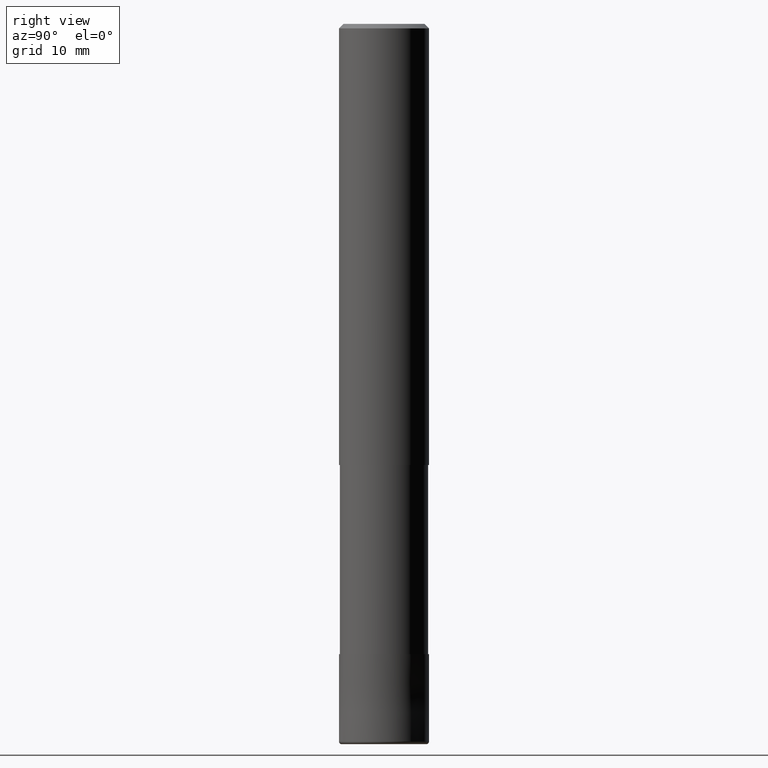
[diagram: clean part render]
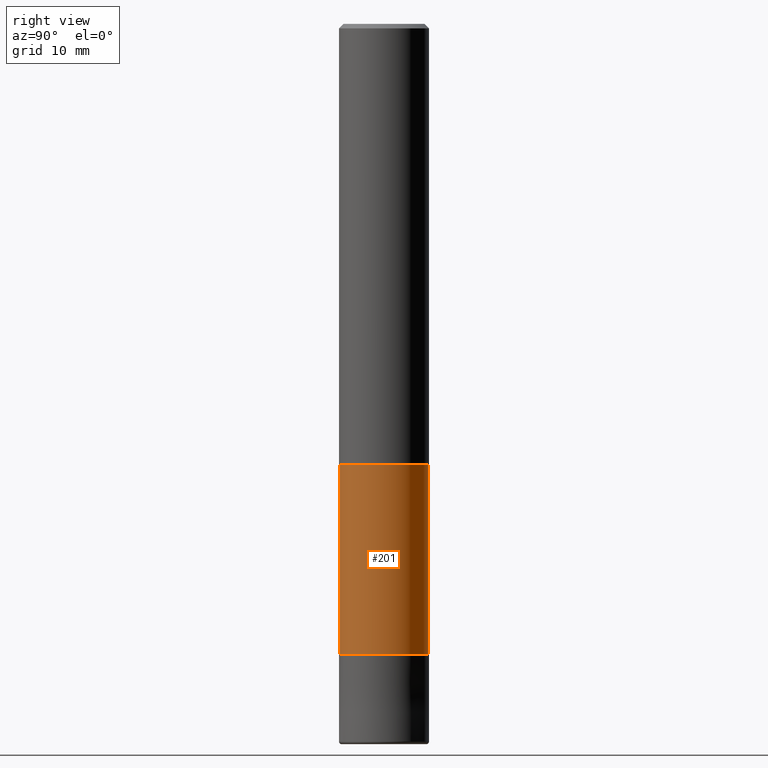
[diagram: same view with one face highlighted and labeled with its STEP entity id]
A machine part, right view. The second image highlights one B-rep face of the part: STEP entity #201.
In plain terms, the highlighted cylindrical surface (partial cylindrical patch) has radius 4.905 mm, axis along (-0, -0, 1).
Its self-contained STEP definition (entity closure, byte-faithful):
#167=VERTEX_POINT('',#366);
#181=VERTEX_POINT('',#382);
#197=EDGE_CURVE('',#181,#217,#400,.T.);
#201=ADVANCED_FACE('',(#404),#405,.T.);
#203=EDGE_CURVE('',#167,#251,#407,.T.);
#217=VERTEX_POINT('',#425);
#235=EDGE_CURVE('',#217,#167,#443,.T.);
#251=VERTEX_POINT('',#461);
#273=EDGE_CURVE('',#181,#251,#484,.T.);
#366=CARTESIAN_POINT('',(6.00663293518107E-016,-4.90495,-70.0));
#382=CARTESIAN_POINT('',(0.0,4.90495,-49.0));
#400=LINE('',#624,#625);
#404=FACE_OUTER_BOUND('',#629,.T.);
#405=CYLINDRICAL_SURFACE('',#630,4.90495);
#407=LINE('',#633,#634);
#425=CARTESIAN_POINT('',(0.0,4.90495,-70.0));
#443=CIRCLE('',#681,4.90495);
#461=CARTESIAN_POINT('',(6.00663293518107E-016,-4.90495,-49.0));
#484=CIRCLE('',#732,4.90495);
#624=CARTESIAN_POINT('',(-6.00663293518107E-016,4.90495,-59.5));
#625=VECTOR('',#874,1.0);
#629=EDGE_LOOP('',(#876,#877,#878,#879));
#630=AXIS2_PLACEMENT_3D('',#880,#881,#882);
#633=CARTESIAN_POINT('',(6.00663293518107E-016,-4.90495,-59.5));
#634=VECTOR('',#883,1.0);
#681=AXIS2_PLACEMENT_3D('',#931,#932,#933);
#732=AXIS2_PLACEMENT_3D('',#983,#984,#985);
#874=DIRECTION('',(0.0,0.0,-1.0));
#876=ORIENTED_EDGE('',*,*,#197,.F.);
#877=ORIENTED_EDGE('',*,*,#273,.T.);
#878=ORIENTED_EDGE('',*,*,#203,.F.);
#879=ORIENTED_EDGE('',*,*,#235,.F.);
#880=CARTESIAN_POINT('',(0.0,0.0,-59.5));
#881=DIRECTION('',(-0.0,-0.0,1.0));
#882=DIRECTION('',(0.0,1.0,0.0));
#883=DIRECTION('',(-0.0,-0.0,1.0));
#931=CARTESIAN_POINT('',(0.0,0.0,-70.0));
#932=DIRECTION('',(0.0,0.0,-1.0));
#933=DIRECTION('',(0.0,1.0,0.0));
#983=CARTESIAN_POINT('',(0.0,0.0,-49.0));
#984=DIRECTION('',(0.0,0.0,-1.0));
#985=DIRECTION('',(0.0,1.0,0.0));